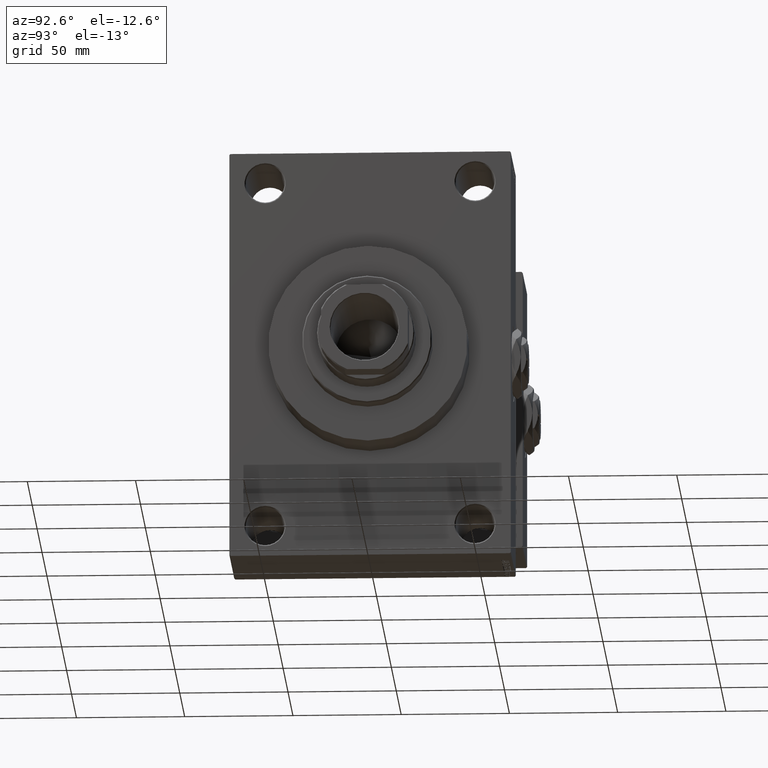
[diagram: clean part render]
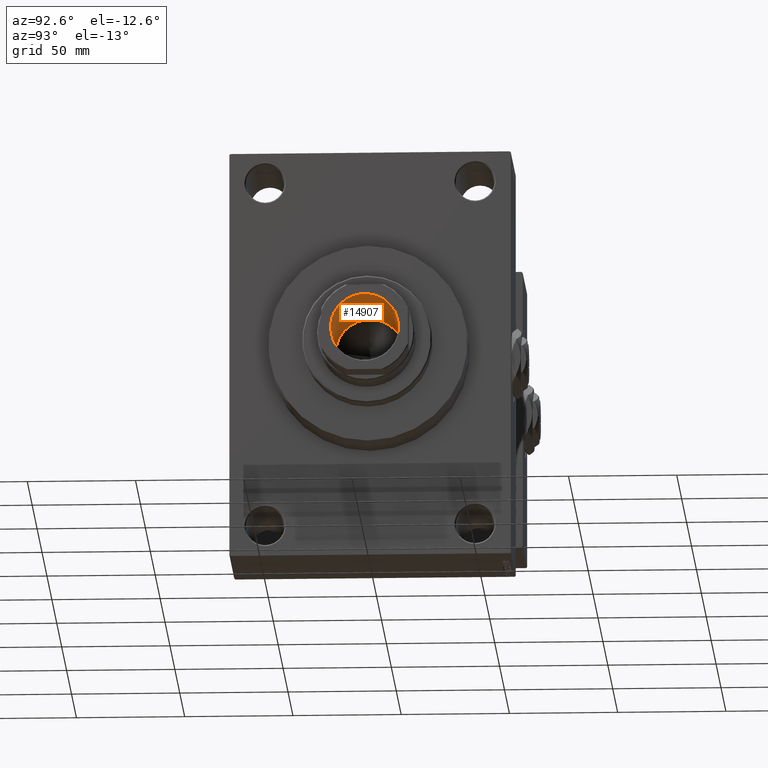
[diagram: same view with one face highlighted and labeled with its STEP entity id]
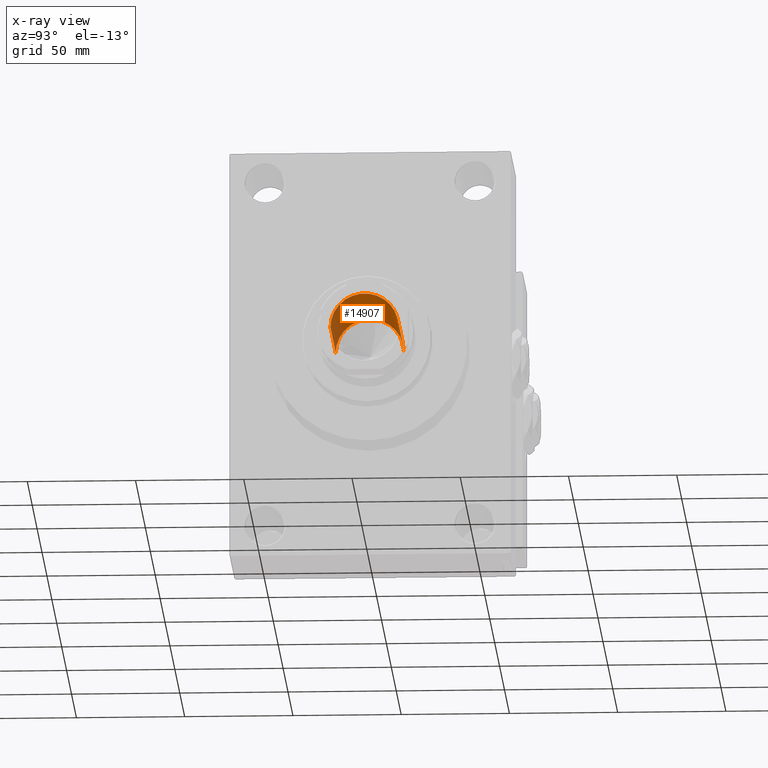
[diagram: x-ray of the same camera — body ghosted, the highlighted face saturated]
A machine part, auxiliary view. The second image highlights one B-rep face of the part: STEP entity #14907.
The next image is the same camera in x-ray: the body ghosted, the highlighted face saturated — about 2% of this face is hidden behind the body in this view.
In plain terms, the highlighted cylindrical surface (edge-blend (fillet) strip) has radius 15.75 mm, axis along (1, 0, 0).
Its self-contained STEP definition (entity closure, byte-faithful):
#4641 = AXIS2_PLACEMENT_3D ( 'NONE', #26478, #37057, #14404 ) ;
#6147 = VECTOR ( 'NONE', #23603, 1000.000000000000000 ) ;
#6304 = ORIENTED_EDGE ( 'NONE', *, *, #7926, .F. ) ;
#6952 = LINE ( 'NONE', #34176, #43287 ) ;
#7926 = EDGE_CURVE ( 'NONE', #21567, #13707, #46494, .T. ) ;
#8414 = EDGE_CURVE ( 'NONE', #30999, #13707, #11722, .T. ) ;
#8957 = ORIENTED_EDGE ( 'NONE', *, *, #8414, .T. ) ;
#9323 = EDGE_CURVE ( 'NONE', #27141, #21567, #12510, .T. ) ;
#11322 = ORIENTED_EDGE ( 'NONE', *, *, #38832, .T. ) ;
#11722 = CIRCLE ( 'NONE', #23760, 15.74999999999999289 ) ;
#12510 = CIRCLE ( 'NONE', #40669, 15.74999999999998934 ) ;
#13448 = EDGE_LOOP ( 'NONE', ( #21122, #11322, #8957, #6304 ) ) ;
#13707 = VERTEX_POINT ( 'NONE', #22147 ) ;
#14404 = DIRECTION ( 'NONE',  ( 1.000000000000000000, 0.000000000000000000, 0.000000000000000000 ) ) ;
#14907 = ADVANCED_FACE ( 'NONE', ( #17920 ), #22455, .F. ) ;
#17587 = CARTESIAN_POINT ( 'NONE',  ( -15.74999999999999289, 1.928818708657080556E-15, 177.6999999999999886 ) ) ;
#17920 = FACE_OUTER_BOUND ( 'NONE', #13448, .T. ) ;
#18070 = DIRECTION ( 'NONE',  ( -0.000000000000000000, -0.000000000000000000, 1.000000000000000000 ) ) ;
#21122 = ORIENTED_EDGE ( 'NONE', *, *, #9323, .F. ) ;
#21517 = DIRECTION ( 'NONE',  ( 1.000000000000000000, 0.000000000000000000, 0.000000000000000000 ) ) ;
#21567 = VERTEX_POINT ( 'NONE', #34149 ) ;
#22147 = CARTESIAN_POINT ( 'NONE',  ( 15.74999999999999289, 0.000000000000000000, 177.6999999999999886 ) ) ;
#22455 = CYLINDRICAL_SURFACE ( 'NONE', #4641, 15.74999999999999289 ) ;
#23603 = DIRECTION ( 'NONE',  ( -0.000000000000000000, -0.000000000000000000, 1.000000000000000000 ) ) ;
#23760 = AXIS2_PLACEMENT_3D ( 'NONE', #48175, #32081, #21517 ) ;
#23953 = CARTESIAN_POINT ( 'NONE',  ( -15.74999999999998934, 1.928818708657080161E-15, 123.0000000000000142 ) ) ;
#26478 = CARTESIAN_POINT ( 'NONE',  ( 0.000000000000000000, 0.000000000000000000, 178.0000000000000284 ) ) ;
#26873 = CARTESIAN_POINT ( 'NONE',  ( 0.000000000000000000, 0.000000000000000000, 123.0000000000000142 ) ) ;
#27141 = VERTEX_POINT ( 'NONE', #23953 ) ;
#27379 = CARTESIAN_POINT ( 'NONE',  ( 15.74999999999999289, 0.000000000000000000, 178.0000000000000284 ) ) ;
#30999 = VERTEX_POINT ( 'NONE', #17587 ) ;
#32081 = DIRECTION ( 'NONE',  ( 0.000000000000000000, 0.000000000000000000, 1.000000000000000000 ) ) ;
#34149 = CARTESIAN_POINT ( 'NONE',  ( 15.74999999999998934, 0.000000000000000000, 123.0000000000000142 ) ) ;
#34176 = CARTESIAN_POINT ( 'NONE',  ( -15.74999999999999289, 1.928818708657080556E-15, 178.0000000000000284 ) ) ;
#34190 = DIRECTION ( 'NONE',  ( 1.000000000000000000, 0.000000000000000000, 0.000000000000000000 ) ) ;
#37057 = DIRECTION ( 'NONE',  ( -0.000000000000000000, -0.000000000000000000, 1.000000000000000000 ) ) ;
#38832 = EDGE_CURVE ( 'NONE', #27141, #30999, #6952, .T. ) ;
#40669 = AXIS2_PLACEMENT_3D ( 'NONE', #26873, #45501, #34190 ) ;
#43287 = VECTOR ( 'NONE', #18070, 1000.000000000000000 ) ;
#45501 = DIRECTION ( 'NONE',  ( -0.000000000000000000, -0.000000000000000000, 1.000000000000000000 ) ) ;
#46494 = LINE ( 'NONE', #27379, #6147 ) ;
#48175 = CARTESIAN_POINT ( 'NONE',  ( 0.000000000000000000, 0.000000000000000000, 177.6999999999999886 ) ) ;